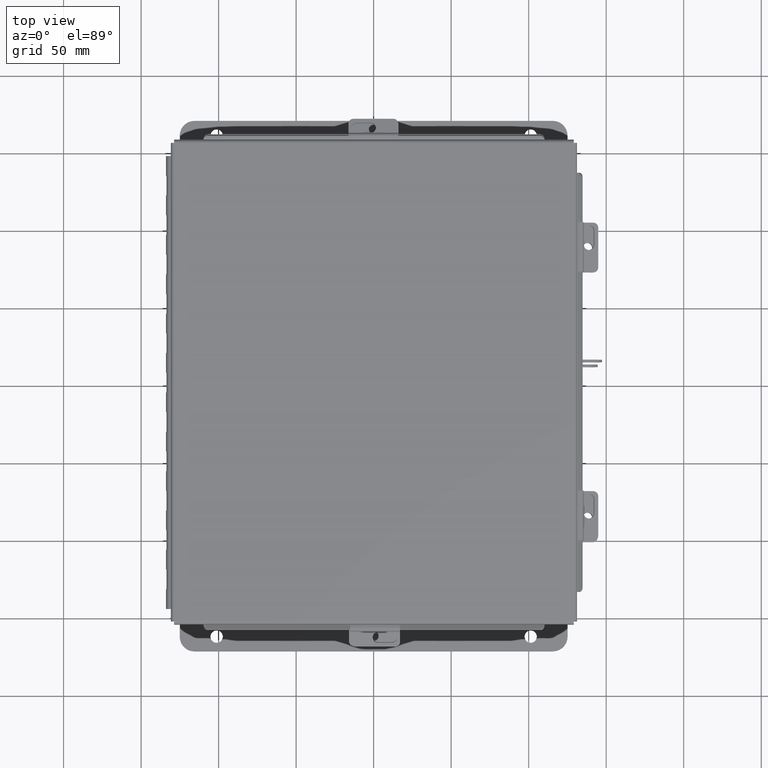
[diagram: clean part render]
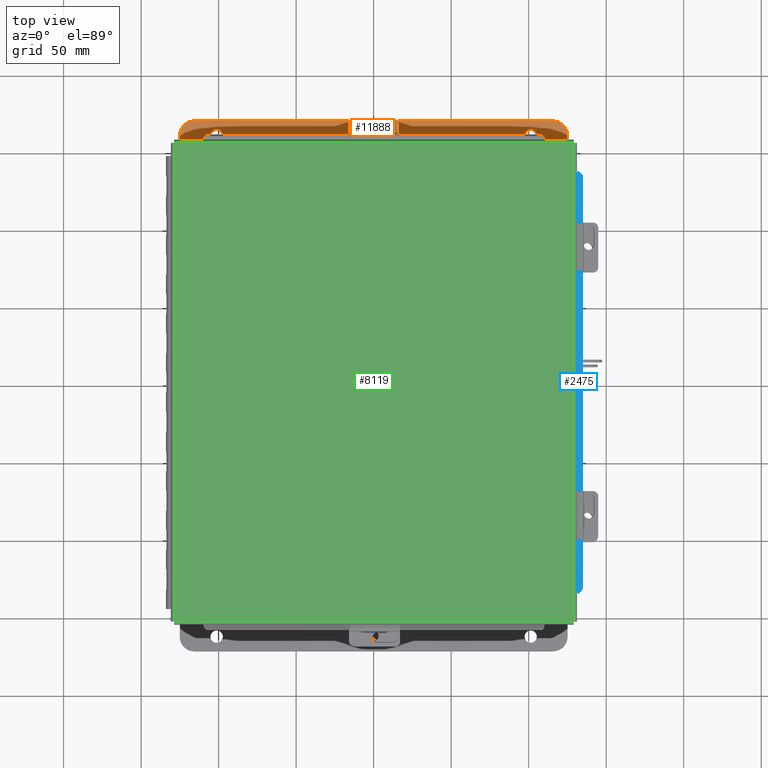
[diagram: same view with three faces highlighted in distinct colors, each labeled with its STEP entity id]
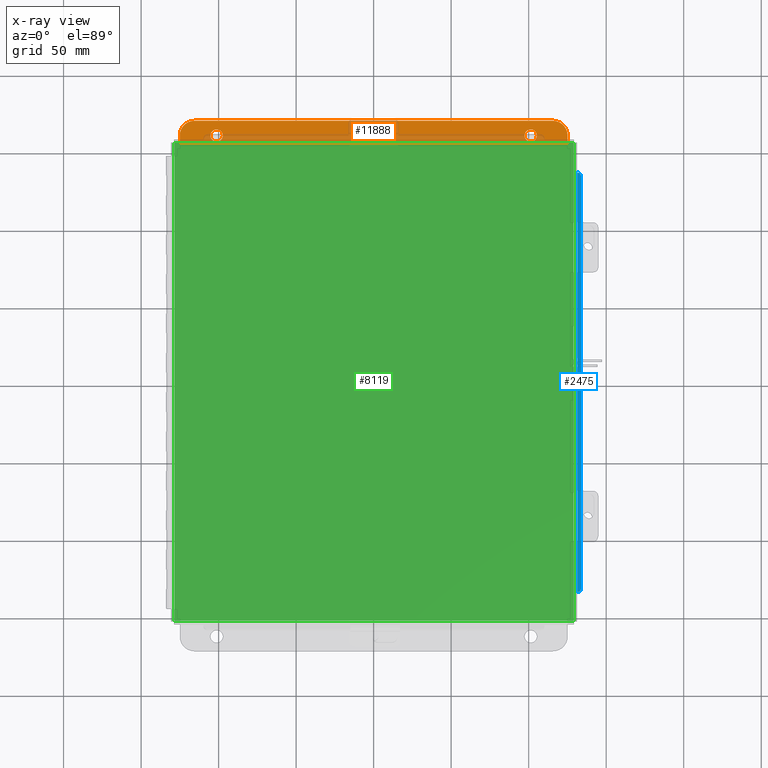
[diagram: x-ray of the same camera — body ghosted, the three highlighted faces saturated]
A machine part, top view with three faces highlighted in distinct colors.
The next image is the same camera in x-ray (body ghosted, the three faces saturated) — at least one of them is partly hidden behind the body in this view.
Their STEP definitions:

[orange] entity #11888 — the highlighted planar face has unit normal (0, 0, 1).
#27 = VERTEX_POINT ( 'NONE', #12669 ) ;
#202 = VERTEX_POINT ( 'NONE', #1092 ) ;
#285 = DIRECTION ( 'NONE',  ( -0.0000000000000000000, -1.000000000000000000, 3.702694488566362300E-015 ) ) ;
#576 = AXIS2_PLACEMENT_3D ( 'NONE', #6389, #15927, #7741 ) ;
#616 = EDGE_LOOP ( 'NONE', ( #11341, #7924 ) ) ;
#651 = CIRCLE ( 'NONE', #4707, 0.1560000000000001700 ) ;
#687 = CIRCLE ( 'NONE', #3573, 0.3750000000000000600 ) ;
#879 = CARTESIAN_POINT ( 'NONE',  ( -3.987800000000000900, 0.5187999999999999300, -3.112300000000001600 ) ) ;
#1092 = CARTESIAN_POINT ( 'NONE',  ( -4.550300000000000000, 0.7378000000000000100, -3.112300000000003000 ) ) ;
#1354 = EDGE_CURVE ( 'NONE', #10683, #8746, #13675, .T. ) ;
#1500 = DIRECTION ( 'NONE',  ( 0.0000000000000000000, 3.702694488566362300E-015, 1.000000000000000000 ) ) ;
#1857 = ORIENTED_EDGE ( 'NONE', *, *, #2153, .T. ) ;
#1952 = EDGE_CURVE ( 'NONE', #11599, #11015, #14311, .T. ) ;
#2044 = CARTESIAN_POINT ( 'NONE',  ( -4.550300000000000000, 0.3628000000000008400, -3.112300000000001200 ) ) ;
#2153 = EDGE_CURVE ( 'NONE', #14783, #5622, #651, .T. ) ;
#2272 = ORIENTED_EDGE ( 'NONE', *, *, #4794, .F. ) ;
#3418 = DIRECTION ( 'NONE',  ( 0.0000000000000000000, -1.000000000000000000, 4.370956789862820400E-015 ) ) ;
#3550 = CARTESIAN_POINT ( 'NONE',  ( 4.550300000000000000, 0.7378000000000000100, -3.112300000000003000 ) ) ;
#3570 = ORIENTED_EDGE ( 'NONE', *, *, #10958, .T. ) ;
#3573 = AXIS2_PLACEMENT_3D ( 'NONE', #2044, #11584, #3418 ) ;
#3617 = CIRCLE ( 'NONE', #8919, 0.1560000000000001700 ) ;
#4036 = AXIS2_PLACEMENT_3D ( 'NONE', #13705, #1500, #11050 ) ;
#4187 = CARTESIAN_POINT ( 'NONE',  ( 4.925300000000000000, 0.7378000000000000100, -3.112300000000003000 ) ) ;
#4395 = CARTESIAN_POINT ( 'NONE',  ( 3.987800000000000000, 0.5187999999999999300, -3.112300000000001600 ) ) ;
#4707 = AXIS2_PLACEMENT_3D ( 'NONE', #15752, #15269, #7637 ) ;
#4794 = EDGE_CURVE ( 'NONE', #202, #11015, #14818, .T. ) ;
#5559 = ORIENTED_EDGE ( 'NONE', *, *, #1354, .F. ) ;
#5622 = VERTEX_POINT ( 'NONE', #879 ) ;
#6038 = ORIENTED_EDGE ( 'NONE', *, *, #13997, .F. ) ;
#6053 = FACE_BOUND ( 'NONE', #616, .T. ) ;
#6389 = CARTESIAN_POINT ( 'NONE',  ( 3.987800000000000000, 0.3627999999999997300, -3.112300000000001200 ) ) ;
#6986 = CARTESIAN_POINT ( 'NONE',  ( 4.925300000000000000, 0.01300000000000010700, -3.112299999999999800 ) ) ;
#7477 = DIRECTION ( 'NONE',  ( -0.0000000000000000000, -3.702694488566362300E-015, -1.000000000000000000 ) ) ;
#7525 = LINE ( 'NONE', #6986, #11157 ) ;
#7597 = EDGE_CURVE ( 'NONE', #13422, #11668, #10366, .T. ) ;
#7605 = CARTESIAN_POINT ( 'NONE',  ( -3.987800000000000900, 0.3627999999999997300, -3.112300000000001200 ) ) ;
#7637 = DIRECTION ( 'NONE',  ( 0.0000000000000000000, -1.000000000000000000, 3.502369222646487400E-015 ) ) ;
#7647 = CARTESIAN_POINT ( 'NONE',  ( 4.925300000000000000, 0.3627999999999997300, -3.112300000000001200 ) ) ;
#7741 = DIRECTION ( 'NONE',  ( 0.0000000000000000000, -1.000000000000000000, 3.502369222646487400E-015 ) ) ;
#7924 = ORIENTED_EDGE ( 'NONE', *, *, #17178, .T. ) ;
#8198 = LINE ( 'NONE', #15297, #11418 ) ;
#8230 = CARTESIAN_POINT ( 'NONE',  ( -4.925299999999999100, 0.01300000000000010700, -3.112299999999999800 ) ) ;
#8746 = VERTEX_POINT ( 'NONE', #16557 ) ;
#8811 = EDGE_CURVE ( 'NONE', #11599, #27, #8198, .T. ) ;
#8856 = DIRECTION ( 'NONE',  ( 0.0000000000000000000, 3.702694488566362300E-015, 1.000000000000000000 ) ) ;
#8919 = AXIS2_PLACEMENT_3D ( 'NONE', #7605, #17152, #8947 ) ;
#8947 = DIRECTION ( 'NONE',  ( 0.0000000000000000000, -1.000000000000000000, 3.502369222646487400E-015 ) ) ;
#9577 = AXIS2_PLACEMENT_3D ( 'NONE', #13753, #8856, #17727 ) ;
#9696 = DIRECTION ( 'NONE',  ( -1.000000000000000000, 0.0000000000000000000, 0.0000000000000000000 ) ) ;
#9878 = ORIENTED_EDGE ( 'NONE', *, *, #16647, .T. ) ;
#10237 = ORIENTED_EDGE ( 'NONE', *, *, #1952, .T. ) ;
#10366 = CIRCLE ( 'NONE', #10684, 0.1560000000000001700 ) ;
#10683 = VERTEX_POINT ( 'NONE', #8230 ) ;
#10684 = AXIS2_PLACEMENT_3D ( 'NONE', #15652, #7477, #17028 ) ;
#10757 = VECTOR ( 'NONE', #17474, 39.37007874015748100 ) ;
#10958 = EDGE_CURVE ( 'NONE', #202, #8746, #687, .T. ) ;
#11015 = VERTEX_POINT ( 'NONE', #3550 ) ;
#11050 = DIRECTION ( 'NONE',  ( 0.0000000000000000000, -1.000000000000000000, 3.702694488566362300E-015 ) ) ;
#11157 = VECTOR ( 'NONE', #9696, 39.37007874015748100 ) ;
#11341 = ORIENTED_EDGE ( 'NONE', *, *, #7597, .T. ) ;
#11394 = CARTESIAN_POINT ( 'NONE',  ( -4.925300000000000000, 0.7378000000000000100, -3.112300000000003000 ) ) ;
#11418 = VECTOR ( 'NONE', #285, 39.37007874015748100 ) ;
#11584 = DIRECTION ( 'NONE',  ( 0.0000000000000000000, 3.702694488566362300E-015, 1.000000000000000000 ) ) ;
#11599 = VERTEX_POINT ( 'NONE', #7647 ) ;
#11668 = VERTEX_POINT ( 'NONE', #17382 ) ;
#11888 = ADVANCED_FACE ( 'NONE', ( #16499, #6053, #12838 ), #16492, .T. ) ;
#12200 = DIRECTION ( 'NONE',  ( -0.0000000000000000000, 1.000000000000000000, -3.702694488566362300E-015 ) ) ;
#12669 = CARTESIAN_POINT ( 'NONE',  ( 4.925300000000000000, 0.01300000000000010700, -3.112299999999999800 ) ) ;
#12838 = FACE_OUTER_BOUND ( 'NONE', #17304, .T. ) ;
#13114 = CIRCLE ( 'NONE', #576, 0.1560000000000001700 ) ;
#13422 = VERTEX_POINT ( 'NONE', #4395 ) ;
#13675 = LINE ( 'NONE', #11394, #16494 ) ;
#13705 = CARTESIAN_POINT ( 'NONE',  ( 0.0000000000000000000, -1.092739197465705300E-014, -3.112299999999999800 ) ) ;
#13753 = CARTESIAN_POINT ( 'NONE',  ( 4.550300000000000000, 0.3627999999999997300, -3.112300000000001200 ) ) ;
#13772 = ORIENTED_EDGE ( 'NONE', *, *, #8811, .F. ) ;
#13997 = EDGE_CURVE ( 'NONE', #27, #10683, #7525, .T. ) ;
#14311 = CIRCLE ( 'NONE', #9577, 0.3750000000000000600 ) ;
#14783 = VERTEX_POINT ( 'NONE', #17349 ) ;
#14818 = LINE ( 'NONE', #4187, #10757 ) ;
#15269 = DIRECTION ( 'NONE',  ( -0.0000000000000000000, -3.702694488566362300E-015, -1.000000000000000000 ) ) ;
#15297 = CARTESIAN_POINT ( 'NONE',  ( 4.925300000000000000, 0.0000000000000000000, -3.112299999999999800 ) ) ;
#15652 = CARTESIAN_POINT ( 'NONE',  ( 3.987800000000000000, 0.3627999999999997300, -3.112300000000001200 ) ) ;
#15752 = CARTESIAN_POINT ( 'NONE',  ( -3.987800000000000900, 0.3627999999999997300, -3.112300000000001200 ) ) ;
#15927 = DIRECTION ( 'NONE',  ( -0.0000000000000000000, -3.702694488566362300E-015, -1.000000000000000000 ) ) ;
#16492 = PLANE ( 'NONE',  #4036 ) ;
#16494 = VECTOR ( 'NONE', #12200, 39.37007874015748100 ) ;
#16499 = FACE_BOUND ( 'NONE', #16810, .T. ) ;
#16557 = CARTESIAN_POINT ( 'NONE',  ( -4.925300000000000000, 0.3628000000000008400, -3.112300000000001200 ) ) ;
#16647 = EDGE_CURVE ( 'NONE', #5622, #14783, #3617, .T. ) ;
#16810 = EDGE_LOOP ( 'NONE', ( #9878, #1857 ) ) ;
#17028 = DIRECTION ( 'NONE',  ( 0.0000000000000000000, -1.000000000000000000, 3.502369222646487400E-015 ) ) ;
#17152 = DIRECTION ( 'NONE',  ( -0.0000000000000000000, -3.702694488566362300E-015, -1.000000000000000000 ) ) ;
#17178 = EDGE_CURVE ( 'NONE', #11668, #13422, #13114, .T. ) ;
#17304 = EDGE_LOOP ( 'NONE', ( #13772, #10237, #2272, #3570, #5559, #6038 ) ) ;
#17349 = CARTESIAN_POINT ( 'NONE',  ( -3.987800000000000900, 0.2067999999999996000, -3.112300000000000700 ) ) ;
#17382 = CARTESIAN_POINT ( 'NONE',  ( 3.987800000000000000, 0.2067999999999996000, -3.112300000000000700 ) ) ;
#17474 = DIRECTION ( 'NONE',  ( 1.000000000000000000, -0.0000000000000000000, -0.0000000000000000000 ) ) ;
#17727 = DIRECTION ( 'NONE',  ( 0.0000000000000000000, -1.000000000000000000, 4.370956789862820400E-015 ) ) ;

[blue] entity #2475 — the highlighted planar face has unit normal (-0.5, -0, 0.866).
#239 = AXIS2_PLACEMENT_3D ( 'NONE', #17031, #303, #16741 ) ;
#303 = DIRECTION ( 'NONE',  ( 0.5000000000000020000, 0.0000000000000000000, -0.8660254037844374900 ) ) ;
#463 = CARTESIAN_POINT ( 'NONE',  ( -5.260706350946112100, 5.224478932188135100, 0.4269920976626969100 ) ) ;
#841 = ORIENTED_EDGE ( 'NONE', *, *, #8688, .F. ) ;
#1267 = ORIENTED_EDGE ( 'NONE', *, *, #7607, .T. ) ;
#1288 = ORIENTED_EDGE ( 'NONE', *, *, #7153, .F. ) ;
#1416 = CARTESIAN_POINT ( 'NONE',  ( -5.169750000000002300, -5.324478932188134700, 0.4795057713659400300 ) ) ;
#2068 = CARTESIAN_POINT ( 'NONE',  ( -5.174103810567668700, -5.224478932188135100, 0.4769920976626971200 ) ) ;
#2165 = CARTESIAN_POINT ( 'NONE',  ( -1.500069589632089700, 0.0000000000000000000, 2.598196744131761700 ) ) ;
#2475 = ADVANCED_FACE ( 'NONE', ( #4107 ), #7803, .T. ) ;
#2715 = VECTOR ( 'NONE', #5378, 39.37007874015748900 ) ;
#2914 = LINE ( 'NONE', #12070, #6137 ) ;
#3098 = VECTOR ( 'NONE', #9549, 39.37007874015748100 ) ;
#3204 = ORIENTED_EDGE ( 'NONE', *, *, #12872, .F. ) ;
#3443 = DIRECTION ( 'NONE',  ( -0.8660254037844370400, 0.0000000000000000000, -0.5000000000000028900 ) ) ;
#4107 = FACE_OUTER_BOUND ( 'NONE', #15784, .T. ) ;
#4303 = VERTEX_POINT ( 'NONE', #10891 ) ;
#5378 = DIRECTION ( 'NONE',  ( -0.8660254037844362700, -9.059668427480828900E-015, -0.5000000000000037700 ) ) ;
#5401 = EDGE_CURVE ( 'NONE', #10379, #15286, #6121, .T. ) ;
#5820 = VERTEX_POINT ( 'NONE', #11740 ) ;
#6121 = CIRCLE ( 'NONE', #239, 0.09999999999999986700 ) ;
#6137 = VECTOR ( 'NONE', #6651, 39.37007874015748100 ) ;
#6206 = AXIS2_PLACEMENT_3D ( 'NONE', #2165, #8914, #12982 ) ;
#6315 = LINE ( 'NONE', #1416, #3098 ) ;
#6422 = ORIENTED_EDGE ( 'NONE', *, *, #7874, .F. ) ;
#6651 = DIRECTION ( 'NONE',  ( -0.0000000000000000000, -1.000000000000000000, -0.0000000000000000000 ) ) ;
#7153 = EDGE_CURVE ( 'NONE', #5820, #15286, #9515, .T. ) ;
#7607 = EDGE_CURVE ( 'NONE', #14305, #16253, #10804, .T. ) ;
#7803 = PLANE ( 'NONE',  #6206 ) ;
#7874 = EDGE_CURVE ( 'NONE', #10379, #16253, #2914, .T. ) ;
#8688 = EDGE_CURVE ( 'NONE', #4303, #5820, #6315, .T. ) ;
#8847 = AXIS2_PLACEMENT_3D ( 'NONE', #2068, #11610, #3443 ) ;
#8885 = CARTESIAN_POINT ( 'NONE',  ( -5.174103810567669500, 5.324478932188136500, 0.4769920976626966200 ) ) ;
#8914 = DIRECTION ( 'NONE',  ( 0.5000000000000020000, 0.0000000000000000000, -0.8660254037844374900 ) ) ;
#9444 = CARTESIAN_POINT ( 'NONE',  ( -5.260706350946112100, -5.224478932188135100, 0.4269920976626969100 ) ) ;
#9515 = LINE ( 'NONE', #13504, #2715 ) ;
#9549 = DIRECTION ( 'NONE',  ( 0.0000000000000000000, 1.000000000000000000, -1.539219909660675400E-016 ) ) ;
#10012 = LINE ( 'NONE', #16677, #13224 ) ;
#10379 = VERTEX_POINT ( 'NONE', #463 ) ;
#10804 = CIRCLE ( 'NONE', #8847, 0.09999999999999986700 ) ;
#10891 = CARTESIAN_POINT ( 'NONE',  ( -5.169750000000002300, -5.324478932188134700, 0.4795057713659395800 ) ) ;
#11610 = DIRECTION ( 'NONE',  ( 0.5000000000000020000, 0.0000000000000000000, -0.8660254037844374900 ) ) ;
#11740 = CARTESIAN_POINT ( 'NONE',  ( -5.169750000000002300, 5.324478932188135600, 0.4795057713659395800 ) ) ;
#12070 = CARTESIAN_POINT ( 'NONE',  ( -5.260706350946112100, -5.324478932188134700, 0.4269920976626969100 ) ) ;
#12872 = EDGE_CURVE ( 'NONE', #14305, #4303, #10012, .T. ) ;
#12982 = DIRECTION ( 'NONE',  ( -0.8660254037844374900, 0.0000000000000000000, -0.5000000000000020000 ) ) ;
#13224 = VECTOR ( 'NONE', #13908, 39.37007874015748100 ) ;
#13504 = CARTESIAN_POINT ( 'NONE',  ( -5.260706350946112100, 5.324478932188135600, 0.4269920976626969100 ) ) ;
#13908 = DIRECTION ( 'NONE',  ( 0.8660254037844374900, -0.0000000000000000000, 0.5000000000000020000 ) ) ;
#14305 = VERTEX_POINT ( 'NONE', #15087 ) ;
#15087 = CARTESIAN_POINT ( 'NONE',  ( -5.174103810567668700, -5.324478932188134700, 0.4769920976626969600 ) ) ;
#15286 = VERTEX_POINT ( 'NONE', #8885 ) ;
#15784 = EDGE_LOOP ( 'NONE', ( #3204, #1267, #6422, #17308, #1288, #841 ) ) ;
#16253 = VERTEX_POINT ( 'NONE', #9444 ) ;
#16677 = CARTESIAN_POINT ( 'NONE',  ( -5.156250000000001800, -5.324478932188134700, 0.4872999999999997300 ) ) ;
#16741 = DIRECTION ( 'NONE',  ( -0.8660254037844370400, 0.0000000000000000000, -0.5000000000000028900 ) ) ;
#17031 = CARTESIAN_POINT ( 'NONE',  ( -5.174103810567668700, 5.224478932188135100, 0.4769920976626971800 ) ) ;
#17308 = ORIENTED_EDGE ( 'NONE', *, *, #5401, .T. ) ;

[green] entity #8119 — the highlighted planar face has unit normal (-0, -0, 1).
#1507 = PLANE ( 'NONE',  #4799 ) ;
#2050 = LINE ( 'NONE', #12262, #16132 ) ;
#2545 = CARTESIAN_POINT ( 'NONE',  ( -5.068549999999998300, -6.068549999999999200, -0.07469999999999993300 ) ) ;
#3170 = ORIENTED_EDGE ( 'NONE', *, *, #4240, .T. ) ;
#4002 = LINE ( 'NONE', #4699, #14862 ) ;
#4240 = EDGE_CURVE ( 'NONE', #14868, #12769, #2050, .T. ) ;
#4391 = DIRECTION ( 'NONE',  ( -1.000000000000000000, 0.0000000000000000000, -0.0000000000000000000 ) ) ;
#4494 = DIRECTION ( 'NONE',  ( -0.0000000000000000000, 1.000000000000000000, -0.0000000000000000000 ) ) ;
#4699 = CARTESIAN_POINT ( 'NONE',  ( 5.068550000000001000, 6.074478932188137400, -0.07469999999999993300 ) ) ;
#4799 = AXIS2_PLACEMENT_3D ( 'NONE', #11166, #12528, #4391 ) ;
#5506 = CARTESIAN_POINT ( 'NONE',  ( 5.068550000000001000, -6.068549999999999200, -0.07469999999999993300 ) ) ;
#6028 = DIRECTION ( 'NONE',  ( -0.0000000000000000000, -1.000000000000000000, -0.0000000000000000000 ) ) ;
#6421 = EDGE_CURVE ( 'NONE', #17410, #14868, #15328, .T. ) ;
#7584 = EDGE_CURVE ( 'NONE', #13985, #17410, #4002, .T. ) ;
#8119 = ADVANCED_FACE ( 'NONE', ( #13539 ), #1507, .T. ) ;
#8242 = CARTESIAN_POINT ( 'NONE',  ( 5.074478932188137400, -6.068549999999999200, -0.07469999999999993300 ) ) ;
#9314 = LINE ( 'NONE', #12810, #13381 ) ;
#9949 = ORIENTED_EDGE ( 'NONE', *, *, #6421, .T. ) ;
#10057 = DIRECTION ( 'NONE',  ( 1.000000000000000000, 0.0000000000000000000, 0.0000000000000000000 ) ) ;
#10474 = EDGE_LOOP ( 'NONE', ( #10837, #11063, #9949, #3170 ) ) ;
#10837 = ORIENTED_EDGE ( 'NONE', *, *, #17035, .T. ) ;
#11063 = ORIENTED_EDGE ( 'NONE', *, *, #7584, .T. ) ;
#11166 = CARTESIAN_POINT ( 'NONE',  ( 0.0000000000000000000, 0.0000000000000000000, -0.07470000000000000300 ) ) ;
#12262 = CARTESIAN_POINT ( 'NONE',  ( -5.068549999999998300, -6.074478932188134700, -0.07469999999999993300 ) ) ;
#12528 = DIRECTION ( 'NONE',  ( 0.0000000000000000000, 0.0000000000000000000, -1.000000000000000000 ) ) ;
#12769 = VERTEX_POINT ( 'NONE', #15126 ) ;
#12810 = CARTESIAN_POINT ( 'NONE',  ( -5.074478932188135600, 6.068550000000001000, -0.07469999999999993300 ) ) ;
#13381 = VECTOR ( 'NONE', #10057, 39.37007874015748100 ) ;
#13539 = FACE_OUTER_BOUND ( 'NONE', #10474, .T. ) ;
#13985 = VERTEX_POINT ( 'NONE', #15143 ) ;
#14862 = VECTOR ( 'NONE', #6028, 39.37007874015748100 ) ;
#14868 = VERTEX_POINT ( 'NONE', #2545 ) ;
#15126 = CARTESIAN_POINT ( 'NONE',  ( -5.068549999999998300, 6.068550000000001000, -0.07469999999999993300 ) ) ;
#15143 = CARTESIAN_POINT ( 'NONE',  ( 5.068550000000001000, 6.068550000000001000, -0.07469999999999993300 ) ) ;
#15174 = DIRECTION ( 'NONE',  ( -1.000000000000000000, 0.0000000000000000000, 0.0000000000000000000 ) ) ;
#15328 = LINE ( 'NONE', #8242, #16185 ) ;
#16132 = VECTOR ( 'NONE', #4494, 39.37007874015748100 ) ;
#16185 = VECTOR ( 'NONE', #15174, 39.37007874015748100 ) ;
#17035 = EDGE_CURVE ( 'NONE', #12769, #13985, #9314, .T. ) ;
#17410 = VERTEX_POINT ( 'NONE', #5506 ) ;